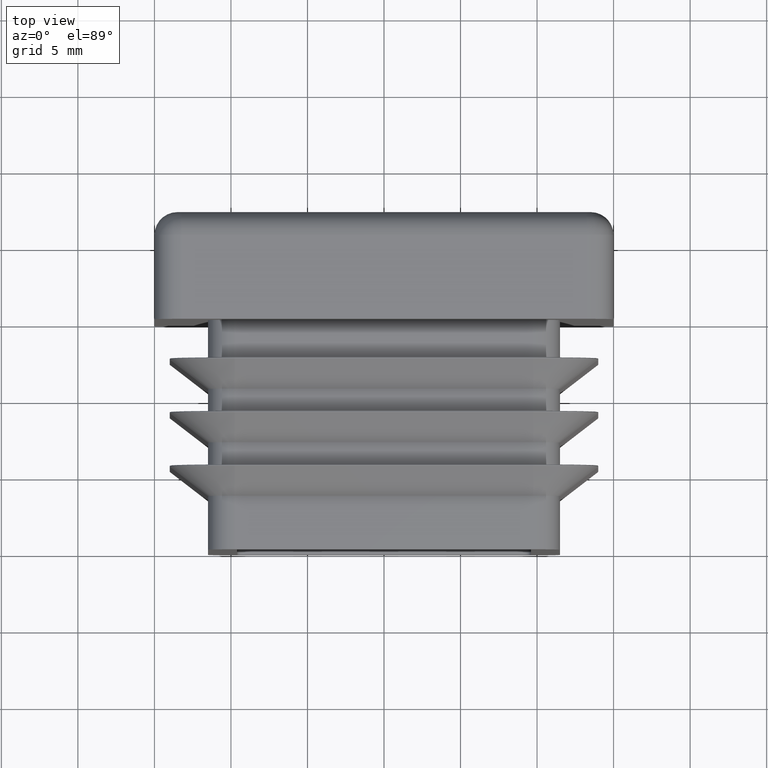
[diagram: clean part render]
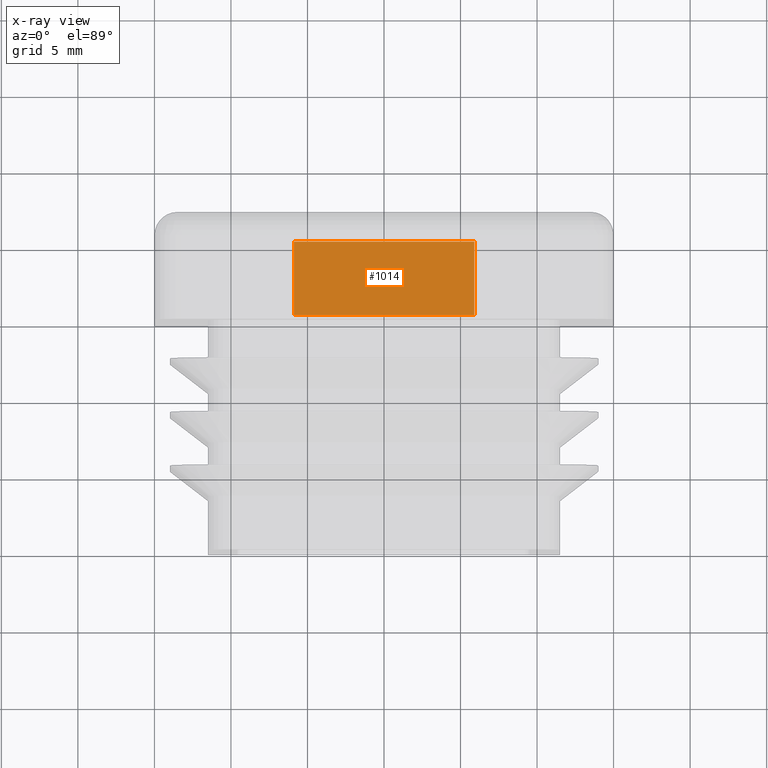
[diagram: x-ray — body ghosted, one internal face saturated and labeled with its STEP entity id]
A machine part, top view, then the same camera in x-ray: the body is ghosted and one INTERNAL B-rep face — a face not visible from any outside direction — is saturated and labeled: STEP entity #1014.
In plain terms, the highlighted planar face has unit normal (0, -0, 1).
Its self-contained STEP definition (entity closure, byte-faithful):
#300 = ORIENTED_EDGE ( 'NONE', *, *, #17014, .T. ) ;
#1014 = ADVANCED_FACE ( 'NONE', ( #10566 ), #19341, .F. ) ;
#1097 = ORIENTED_EDGE ( 'NONE', *, *, #13371, .T. ) ;
#1387 = VECTOR ( 'NONE', #11019, 1000.000000000000000 ) ;
#2629 = VERTEX_POINT ( 'NONE', #6167 ) ;
#2910 = VECTOR ( 'NONE', #20799, 1000.000000000000000 ) ;
#3160 = VECTOR ( 'NONE', #8095, 1000.000000000000000 ) ;
#3522 = LINE ( 'NONE', #13534, #15447 ) ;
#3682 = ORIENTED_EDGE ( 'NONE', *, *, #6227, .F. ) ;
#3715 = VERTEX_POINT ( 'NONE', #11418 ) ;
#3917 = VERTEX_POINT ( 'NONE', #16730 ) ;
#4040 = DIRECTION ( 'NONE',  ( 0.000000000000000000, -0.000000000000000000, 1.000000000000000000 ) ) ;
#6167 = CARTESIAN_POINT ( 'NONE',  ( -5.899999999999999467, 0.5999999999999998668, -5.899999999999999467 ) ) ;
#6227 = EDGE_CURVE ( 'NONE', #3917, #2629, #8835, .T. ) ;
#8095 = DIRECTION ( 'NONE',  ( -0.000000000000000000, -1.000000000000000000, -0.000000000000000000 ) ) ;
#8835 = LINE ( 'NONE', #19001, #2910 ) ;
#10566 = FACE_OUTER_BOUND ( 'NONE', #19022, .T. ) ;
#11019 = DIRECTION ( 'NONE',  ( -1.000000000000000000, 0.000000000000000000, 0.000000000000000000 ) ) ;
#11418 = CARTESIAN_POINT ( 'NONE',  ( 5.899999999999999467, 0.5999999999999998668, -5.899999999999999467 ) ) ;
#11686 = DIRECTION ( 'NONE',  ( 1.000000000000000000, 0.000000000000000000, 0.000000000000000000 ) ) ;
#11738 = CARTESIAN_POINT ( 'NONE',  ( 5.899999999999999467, 5.399999999999998579, -5.899999999999999467 ) ) ;
#12366 = LINE ( 'NONE', #21945, #3160 ) ;
#12742 = CARTESIAN_POINT ( 'NONE',  ( 5.899999999999999467, 22.18772003600251708, -5.899999999999999467 ) ) ;
#13371 = EDGE_CURVE ( 'NONE', #3715, #2629, #18386, .T. ) ;
#13534 = CARTESIAN_POINT ( 'NONE',  ( 5.899999999999999467, 5.399999999999998579, -5.899999999999999467 ) ) ;
#14073 = CARTESIAN_POINT ( 'NONE',  ( 5.899999999999999467, 0.5999999999999998668, -5.899999999999999467 ) ) ;
#15447 = VECTOR ( 'NONE', #11686, 1000.000000000000000 ) ;
#16130 = VERTEX_POINT ( 'NONE', #11738 ) ;
#16730 = CARTESIAN_POINT ( 'NONE',  ( -5.899999999999999467, 5.399999999999998579, -5.899999999999999467 ) ) ;
#17014 = EDGE_CURVE ( 'NONE', #3917, #16130, #3522, .T. ) ;
#18386 = LINE ( 'NONE', #14073, #1387 ) ;
#19001 = CARTESIAN_POINT ( 'NONE',  ( -5.899999999999999467, 22.18772003600251708, -5.899999999999999467 ) ) ;
#19022 = EDGE_LOOP ( 'NONE', ( #3682, #300, #21477, #1097 ) ) ;
#19341 = PLANE ( 'NONE',  #20952 ) ;
#20799 = DIRECTION ( 'NONE',  ( -0.000000000000000000, -1.000000000000000000, -0.000000000000000000 ) ) ;
#20952 = AXIS2_PLACEMENT_3D ( 'NONE', #12742, #4040, #21077 ) ;
#21077 = DIRECTION ( 'NONE',  ( 1.000000000000000000, 0.000000000000000000, -0.000000000000000000 ) ) ;
#21477 = ORIENTED_EDGE ( 'NONE', *, *, #21920, .T. ) ;
#21920 = EDGE_CURVE ( 'NONE', #16130, #3715, #12366, .T. ) ;
#21945 = CARTESIAN_POINT ( 'NONE',  ( 5.899999999999999467, 22.18772003600251708, -5.899999999999999467 ) ) ;